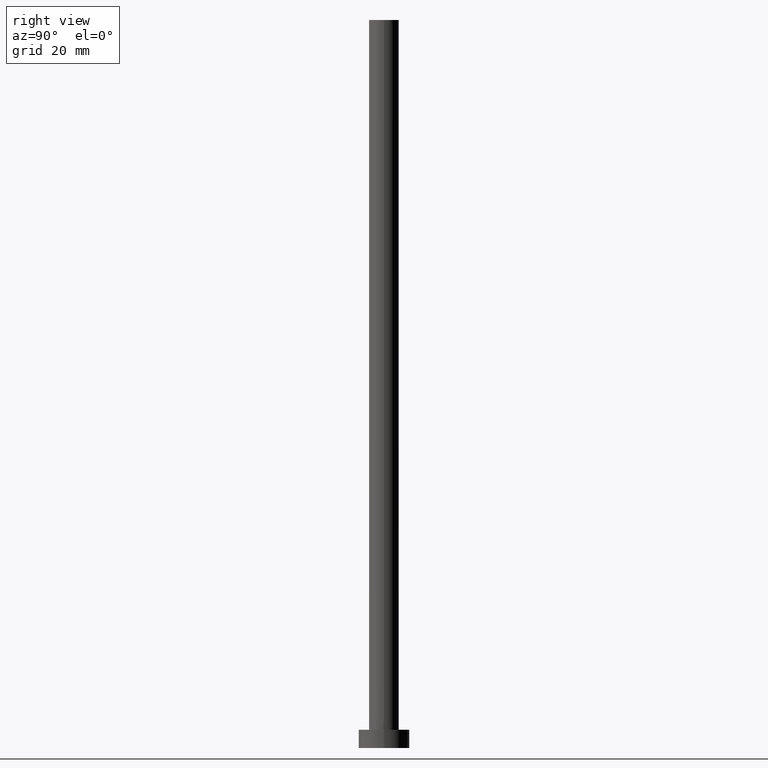
[diagram: clean part render]
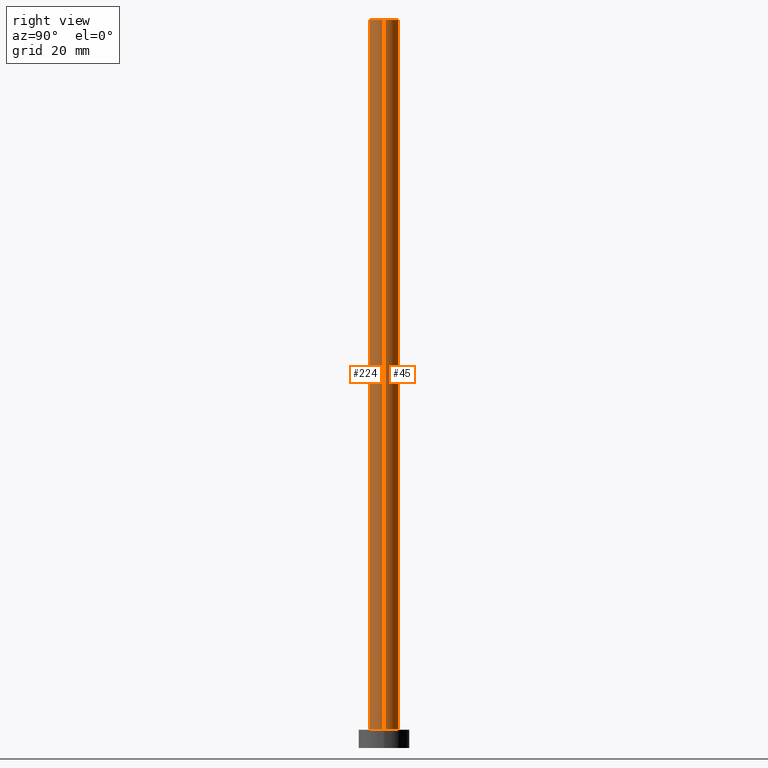
[diagram: same view with one multi-face feature highlighted, each face labeled with its STEP entity id]
A machine part, right view. The highlighted faces form ONE feature: a constant-radius fillet chain: 2 tangent blend faces with common blend radius 4.1 mm. The faces share edges in the B-rep.
Their STEP definitions:
[1] entity #224 (Cylinder):
#10 = EDGE_CURVE ( 'NONE', #21, #197, #218, .T. ) ;
#14 = FACE_OUTER_BOUND ( 'NONE', #149, .T. ) ;
#15 = CARTESIAN_POINT ( 'NONE',  ( 0.000000000000000000, 0.000000000000000000, 5.000000000000000000 ) ) ;
#21 = VERTEX_POINT ( 'NONE', #117 ) ;
#32 = CARTESIAN_POINT ( 'NONE',  ( 4.099999999999999645, 5.021051876504147385E-16, 200.0000000000000000 ) ) ;
#34 = DIRECTION ( 'NONE',  ( -0.000000000000000000, -0.000000000000000000, -1.000000000000000000 ) ) ;
#38 = VERTEX_POINT ( 'NONE', #83 ) ;
#39 = ORIENTED_EDGE ( 'NONE', *, *, #231, .F. ) ;
#44 = VERTEX_POINT ( 'NONE', #67 ) ;
#46 = DIRECTION ( 'NONE',  ( -0.000000000000000000, -0.000000000000000000, -1.000000000000000000 ) ) ;
#62 = ORIENTED_EDGE ( 'NONE', *, *, #247, .T. ) ;
#65 = CARTESIAN_POINT ( 'NONE',  ( -4.099999999999999645, 0.000000000000000000, 200.0000000000000000 ) ) ;
#66 = AXIS2_PLACEMENT_3D ( 'NONE', #15, #72, #70 ) ;
#67 = CARTESIAN_POINT ( 'NONE',  ( 4.099999999999999645, 5.021051876504147385E-16, 200.0000000000000000 ) ) ;
#70 = DIRECTION ( 'NONE',  ( 1.000000000000000000, 0.000000000000000000, 0.000000000000000000 ) ) ;
#72 = DIRECTION ( 'NONE',  ( 0.000000000000000000, 0.000000000000000000, 1.000000000000000000 ) ) ;
#73 = LINE ( 'NONE', #32, #179 ) ;
#83 = CARTESIAN_POINT ( 'NONE',  ( 4.099999999999999645, 5.021051876504147385E-16, 5.000000000000000000 ) ) ;
#93 = CIRCLE ( 'NONE', #198, 4.099999999999999645 ) ;
#104 = DIRECTION ( 'NONE',  ( 0.000000000000000000, 0.000000000000000000, 1.000000000000000000 ) ) ;
#112 = ORIENTED_EDGE ( 'NONE', *, *, #170, .F. ) ;
#117 = CARTESIAN_POINT ( 'NONE',  ( -4.099999999999999645, 0.000000000000000000, 200.0000000000000000 ) ) ;
#122 = DIRECTION ( 'NONE',  ( -1.000000000000000000, 0.000000000000000000, 0.000000000000000000 ) ) ;
#133 = ORIENTED_EDGE ( 'NONE', *, *, #10, .T. ) ;
#137 = AXIS2_PLACEMENT_3D ( 'NONE', #191, #143, #122 ) ;
#142 = CYLINDRICAL_SURFACE ( 'NONE', #137, 4.099999999999999645 ) ;
#143 = DIRECTION ( 'NONE',  ( -0.000000000000000000, -0.000000000000000000, -1.000000000000000000 ) ) ;
#149 = EDGE_LOOP ( 'NONE', ( #39, #112, #133, #62 ) ) ;
#152 = VECTOR ( 'NONE', #46, 1000.000000000000000 ) ;
#157 = CIRCLE ( 'NONE', #66, 4.099999999999999645 ) ;
#170 = EDGE_CURVE ( 'NONE', #21, #44, #93, .T. ) ;
#179 = VECTOR ( 'NONE', #34, 1000.000000000000000 ) ;
#190 = DIRECTION ( 'NONE',  ( 1.000000000000000000, 0.000000000000000000, 0.000000000000000000 ) ) ;
#191 = CARTESIAN_POINT ( 'NONE',  ( 0.000000000000000000, 0.000000000000000000, 200.0000000000000000 ) ) ;
#197 = VERTEX_POINT ( 'NONE', #249 ) ;
#198 = AXIS2_PLACEMENT_3D ( 'NONE', #214, #104, #190 ) ;
#214 = CARTESIAN_POINT ( 'NONE',  ( 0.000000000000000000, 0.000000000000000000, 200.0000000000000000 ) ) ;
#218 = LINE ( 'NONE', #65, #152 ) ;
#224 = ADVANCED_FACE ( 'NONE', ( #14 ), #142, .T. ) ;
#231 = EDGE_CURVE ( 'NONE', #44, #38, #73, .T. ) ;
#247 = EDGE_CURVE ( 'NONE', #197, #38, #157, .T. ) ;
#249 = CARTESIAN_POINT ( 'NONE',  ( -4.099999999999999645, 0.000000000000000000, 5.000000000000000000 ) ) ;
[2] entity #45 (Cylinder):
#7 = DIRECTION ( 'NONE',  ( -0.000000000000000000, -0.000000000000000000, -1.000000000000000000 ) ) ;
#10 = EDGE_CURVE ( 'NONE', #21, #197, #218, .T. ) ;
#17 = EDGE_CURVE ( 'NONE', #38, #197, #123, .T. ) ;
#19 = ORIENTED_EDGE ( 'NONE', *, *, #49, .F. ) ;
#21 = VERTEX_POINT ( 'NONE', #117 ) ;
#29 = DIRECTION ( 'NONE',  ( 0.000000000000000000, 0.000000000000000000, 1.000000000000000000 ) ) ;
#32 = CARTESIAN_POINT ( 'NONE',  ( 4.099999999999999645, 5.021051876504147385E-16, 200.0000000000000000 ) ) ;
#34 = DIRECTION ( 'NONE',  ( -0.000000000000000000, -0.000000000000000000, -1.000000000000000000 ) ) ;
#38 = VERTEX_POINT ( 'NONE', #83 ) ;
#41 = ORIENTED_EDGE ( 'NONE', *, *, #231, .T. ) ;
#44 = VERTEX_POINT ( 'NONE', #67 ) ;
#45 = ADVANCED_FACE ( 'NONE', ( #64 ), #188, .T. ) ;
#46 = DIRECTION ( 'NONE',  ( -0.000000000000000000, -0.000000000000000000, -1.000000000000000000 ) ) ;
#49 = EDGE_CURVE ( 'NONE', #44, #21, #109, .T. ) ;
#51 = DIRECTION ( 'NONE',  ( -1.000000000000000000, 0.000000000000000000, 0.000000000000000000 ) ) ;
#64 = FACE_OUTER_BOUND ( 'NONE', #113, .T. ) ;
#65 = CARTESIAN_POINT ( 'NONE',  ( -4.099999999999999645, 0.000000000000000000, 200.0000000000000000 ) ) ;
#67 = CARTESIAN_POINT ( 'NONE',  ( 4.099999999999999645, 5.021051876504147385E-16, 200.0000000000000000 ) ) ;
#69 = CARTESIAN_POINT ( 'NONE',  ( 0.000000000000000000, 0.000000000000000000, 200.0000000000000000 ) ) ;
#73 = LINE ( 'NONE', #32, #179 ) ;
#76 = ORIENTED_EDGE ( 'NONE', *, *, #10, .F. ) ;
#83 = CARTESIAN_POINT ( 'NONE',  ( 4.099999999999999645, 5.021051876504147385E-16, 5.000000000000000000 ) ) ;
#84 = CARTESIAN_POINT ( 'NONE',  ( 0.000000000000000000, 0.000000000000000000, 5.000000000000000000 ) ) ;
#100 = CARTESIAN_POINT ( 'NONE',  ( 0.000000000000000000, 0.000000000000000000, 200.0000000000000000 ) ) ;
#103 = AXIS2_PLACEMENT_3D ( 'NONE', #100, #243, #201 ) ;
#109 = CIRCLE ( 'NONE', #103, 4.099999999999999645 ) ;
#113 = EDGE_LOOP ( 'NONE', ( #19, #41, #212, #76 ) ) ;
#117 = CARTESIAN_POINT ( 'NONE',  ( -4.099999999999999645, 0.000000000000000000, 200.0000000000000000 ) ) ;
#123 = CIRCLE ( 'NONE', #136, 4.099999999999999645 ) ;
#136 = AXIS2_PLACEMENT_3D ( 'NONE', #84, #29, #185 ) ;
#152 = VECTOR ( 'NONE', #46, 1000.000000000000000 ) ;
#168 = AXIS2_PLACEMENT_3D ( 'NONE', #69, #7, #51 ) ;
#179 = VECTOR ( 'NONE', #34, 1000.000000000000000 ) ;
#185 = DIRECTION ( 'NONE',  ( 1.000000000000000000, 0.000000000000000000, 0.000000000000000000 ) ) ;
#188 = CYLINDRICAL_SURFACE ( 'NONE', #168, 4.099999999999999645 ) ;
#197 = VERTEX_POINT ( 'NONE', #249 ) ;
#201 = DIRECTION ( 'NONE',  ( 1.000000000000000000, 0.000000000000000000, 0.000000000000000000 ) ) ;
#212 = ORIENTED_EDGE ( 'NONE', *, *, #17, .T. ) ;
#218 = LINE ( 'NONE', #65, #152 ) ;
#231 = EDGE_CURVE ( 'NONE', #44, #38, #73, .T. ) ;
#243 = DIRECTION ( 'NONE',  ( 0.000000000000000000, 0.000000000000000000, 1.000000000000000000 ) ) ;
#249 = CARTESIAN_POINT ( 'NONE',  ( -4.099999999999999645, 0.000000000000000000, 5.000000000000000000 ) ) ;